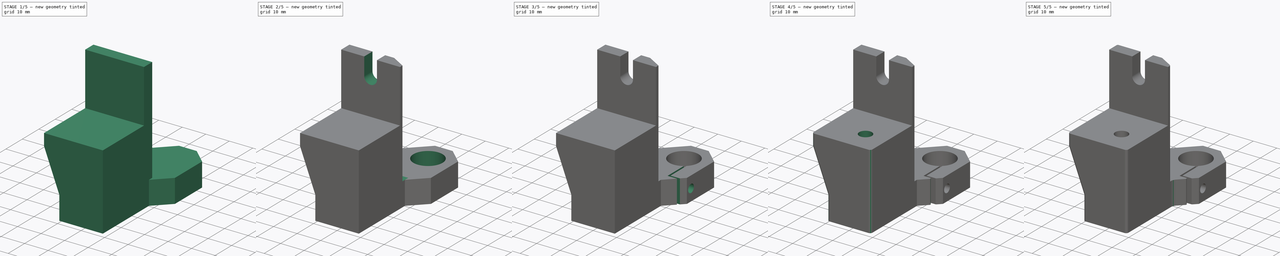
[diagram: build sequence overview — one tinted view per stage of 5, left to right]
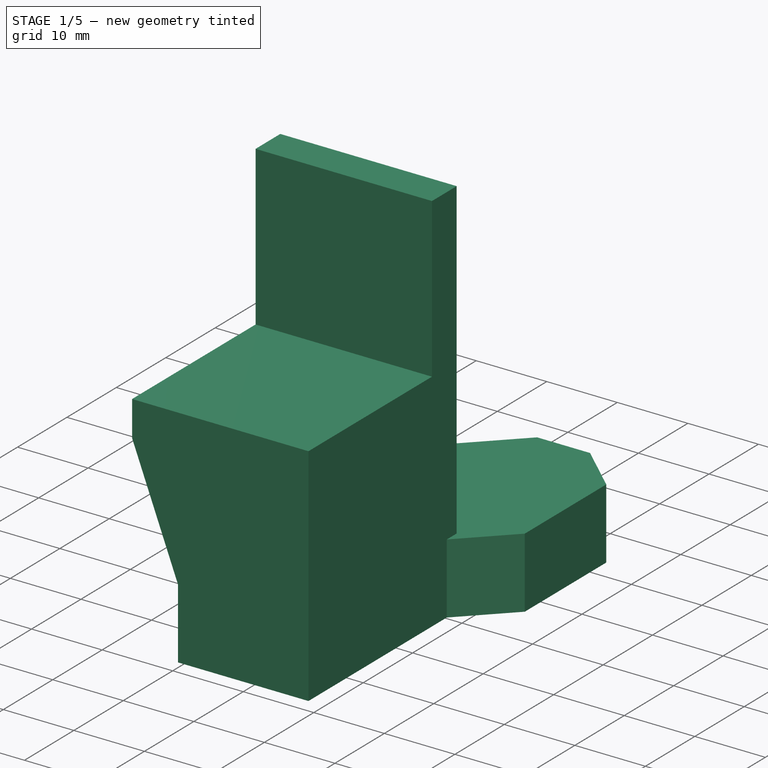
[diagram: stage 1 of 5 — iso view after this stage's code; geometry added in this stage tinted green]
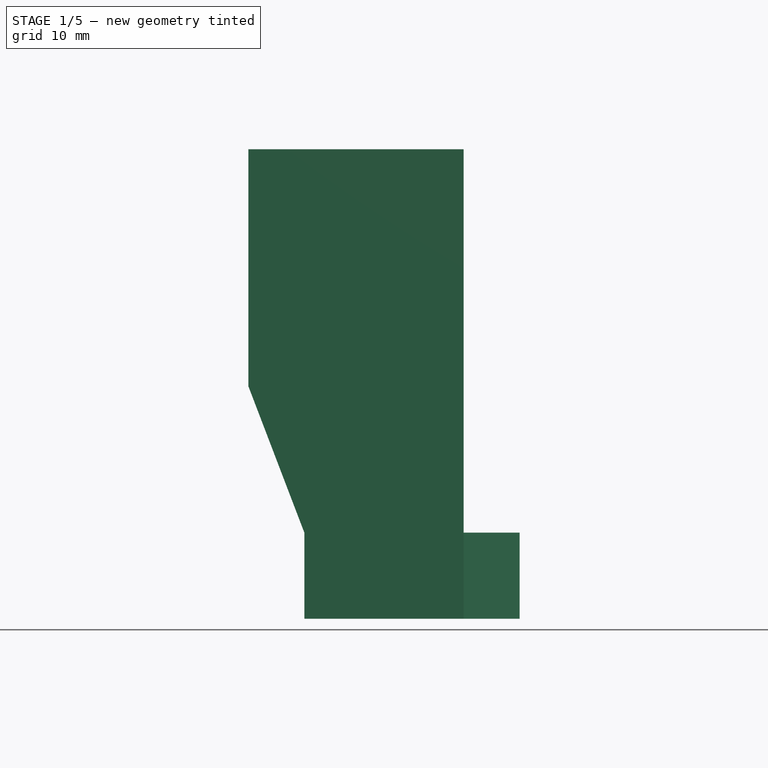
[diagram: stage 1 of 5 — front view after this stage's code; geometry added in this stage tinted green]
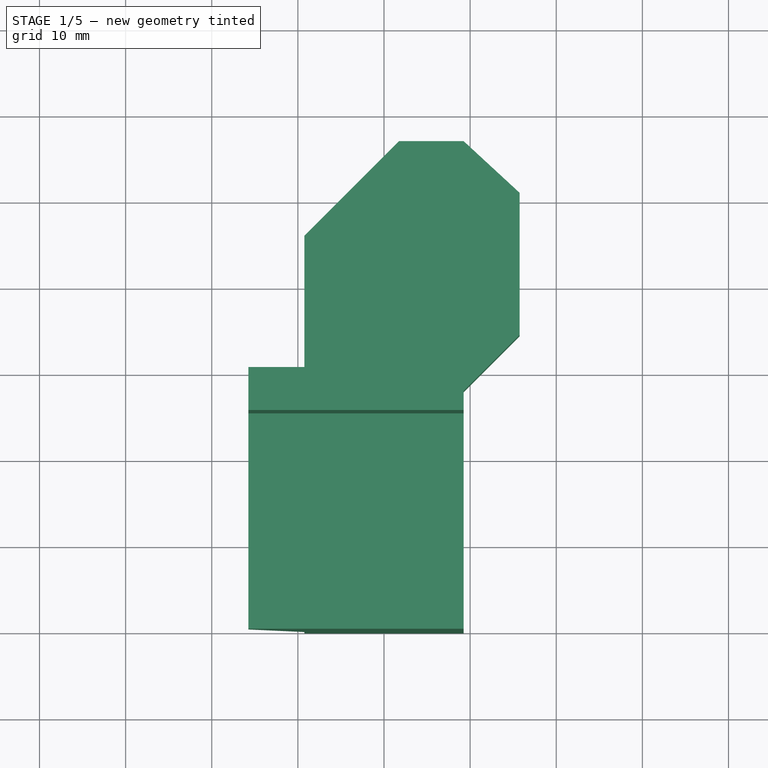
[diagram: stage 1 of 5 — top view after this stage's code; geometry added in this stage tinted green]
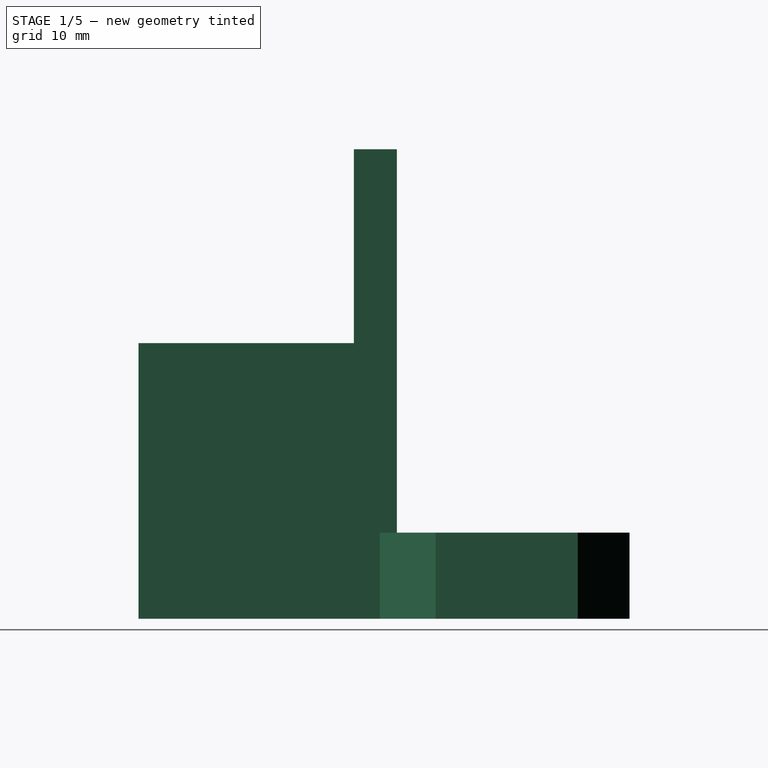
[diagram: stage 1 of 5 — right view after this stage's code; geometry added in this stage tinted green]
FCSTD DOCUMENT  (FreeCAD 0.19R18356 (Git))
Label: z_axis_linear_rail_bracket_double_z_left_1_1
License: All rights reserved
LicenseURL: http://en.wikipedia.org/wiki/All_rights_reserved
objects: Sketcher::SketchObject×12, PartDesign::Pocket×9, PartDesign::Fillet×6, PartDesign::Plane×4, PartDesign::Pad×3, PartDesign::Body×1
note: 47 computed .brp shape members not serialized (recipe doc carries the construction recipe); baked Part::Feature solids carry a one-line shape summary decoded from their .brp

FEATURE [Sketcher::SketchObject] Sketch
  MapMode = 5
  Support = -> [XY_Plane]
  sketch-geometry (8):
    g0: LineSegment StartX=-9.25 StartY=0 StartZ=0 EndX=-9.25 EndY=46 EndZ=0
    g1: LineSegment StartX=-9.25 StartY=46 StartZ=0 EndX=1.75 EndY=57 EndZ=0
    g2: LineSegment StartX=1.75 StartY=57 StartZ=0 EndX=9.25 EndY=57 EndZ=0
    g3: LineSegment StartX=9.25 StartY=57 StartZ=0 EndX=15.75 EndY=51 EndZ=0
    g4: LineSegment StartX=15.75 StartY=51 StartZ=0 EndX=15.75 EndY=34.5 EndZ=0
    g5: LineSegment StartX=15.75 StartY=34.5 StartZ=0 EndX=9.25 EndY=28 EndZ=0
    g6: LineSegment StartX=9.25 StartY=28 StartZ=0 EndX=9.25 EndY=0 EndZ=0
    g7: LineSegment StartX=9.25 StartY=0 StartZ=0 EndX=-9.25 EndY=0 EndZ=0
  constraints (23):
    c: PointOnObject(g0,g-1)
    c: Vertical(g0)
    c: Coincident(g0,g1)
    c: Coincident(g1,g2)
    c: Horizontal(g2)
    c: Coincident(g2,g3)
    c: Coincident(g3,g4)
    c: Vertical(g4)
    c: Coincident(g4,g5)
    c: Coincident(g5,g6)
    c: Vertical(g6)
    c: Coincident(g6,g7)
    c: Coincident(g7,g0)
    c: DistanceX(g7,g7) = 18.5
    c: DistanceX(g2,g2) = 7.5
    c: DistanceX(g5,g4) = 6.5
    c: DistanceX(g0,g1) = 11
    c: DistanceY(g0,g0) = 46
    c: DistanceY(g0,g1) = 57
    c: DistanceY(g3,g2) = 6
    c: DistanceY(g6,g5) = 28
    c: DistanceY(g4,g4) = 16.5
    c: Symmetric(g0,g6,g-2)
FEATURE [PartDesign::Pad] Pad
  Length = 10
  Length2 = 100
  Profile = -> Sketch
  Type = 0
FEATURE [PartDesign::Plane] DatumPlane
  AttachmentOffset = pos=(0,0,10) rot=(0,0,1;0rad)
  Length = 62.8062
  MapMode = 5
  Placement = pos=(0,0,10) rot=(0,0,1;0rad)
  ResizeMode = 0
  Support = -> [XY_Plane]
  Width = 94.8062
FEATURE [Sketcher::SketchObject] Sketch001
  MapMode = 5
  Placement = pos=(0,0,10) rot=(0,0,1;0rad)
  Support = -> [DatumPlane]
  sketch-geometry (4):
    g0: LineSegment StartX=9.25 StartY=0 StartZ=0 EndX=-15.75 EndY=0 EndZ=0
    g1: LineSegment StartX=-15.75 StartY=0 StartZ=0 EndX=-15.75 EndY=30 EndZ=0
    g2: LineSegment StartX=-15.75 StartY=30 StartZ=0 EndX=9.25 EndY=30 EndZ=0
    g3: LineSegment StartX=9.25 StartY=30 StartZ=0 EndX=9.25 EndY=0 EndZ=0
  constraints (12):
    c: Coincident(g0,g1)
    c: Coincident(g1,g2)
    c: Coincident(g2,g3)
    c: Coincident(g3,g0)
    c: Horizontal(g0)
    c: Horizontal(g2)
    c: Vertical(g1)
    c: Vertical(g3)
    c: PointOnObject(g0,g-1)
    c: DistanceX(g-1,g0) = 9.25
    c: DistanceY(g3,g3) = 30
    c: DistanceX(g0,g0) = 25
FEATURE [PartDesign::Pad] Pad001
  BaseFeature = -> Pad
  Length = 22
  Length2 = 100
  Profile = -> Sketch001
  Type = 0
FEATURE [PartDesign::Plane] DatumPlane001
  AttachmentOffset = pos=(0,0,32) rot=(0,0,1;0rad)
  Length = 62.8062
  MapMode = 5
  Placement = pos=(0,0,32) rot=(0,0,1;0rad)
  ResizeMode = 0
  Support = -> [XY_Plane]
  Width = 94.8062
FEATURE [Sketcher::SketchObject] Sketch002
  MapMode = 5
  Placement = pos=(0,0,32) rot=(0,0,1;0rad)
  Support = -> [DatumPlane001]
  sketch-geometry (4):
    g0: LineSegment StartX=-15.75 StartY=30 StartZ=0 EndX=9.25 EndY=30 EndZ=0
    g1: LineSegment StartX=9.25 StartY=30 StartZ=0 EndX=9.25 EndY=25 EndZ=0
    g2: LineSegment StartX=9.25 StartY=25 StartZ=0 EndX=-15.75 EndY=25 EndZ=0
    g3: LineSegment StartX=-15.75 StartY=25 StartZ=0 EndX=-15.75 EndY=30 EndZ=0
  constraints (12):
    c: Coincident(g0,g1)
    c: Coincident(g1,g2)
    c: Coincident(g2,g3)
    c: Coincident(g3,g0)
    c: Horizontal(g0)
    c: Horizontal(g2)
    c: Vertical(g1)
    c: Vertical(g3)
    c: DistanceX(g2,g2) = 25
    c: DistanceX(g-1,g1) = 9.25
    c: DistanceY(g-1,g0) = 30
    c: DistanceY(g3,g3) = 5
FEATURE [PartDesign::Pad] Pad002
  BaseFeature = -> Pad001
  Length = 22.5
  Length2 = 100
  Profile = -> Sketch002
  Type = 0
FEATURE [Sketcher::SketchObject] Sketch003
  MapMode = 5
  Placement = pos=(0,0,0) rot=(1,0,0;1.5708rad)
  Support = -> [XZ_Plane]
  sketch-geometry (3):
    g0: LineSegment StartX=-15.75 StartY=27 StartZ=0 EndX=-9.25 EndY=10 EndZ=0
    g1: LineSegment StartX=-9.25 StartY=10 StartZ=0 EndX=-15.75 EndY=10 EndZ=0
    g2: LineSegment StartX=-15.75 StartY=10 StartZ=0 EndX=-15.75 EndY=27 EndZ=0
  constraints (9):
    c: Coincident(g0,g1)
    c: Horizontal(g1)
    c: Coincident(g1,g2)
    c: Coincident(g2,g0)
    c: Vertical(g2)
    c: DistanceY(g2,g2) = 17
    c: DistanceY(g-1,g1) = 10
    c: DistanceX(g1,g-1) = 15.75
    c: DistanceX(g1,g1) = 6.5
FEATURE [PartDesign::Pocket] Pocket
  BaseFeature = -> Pad002
  Length = 5
  Length2 = 100
  Profile = -> Sketch003
  Type = 1
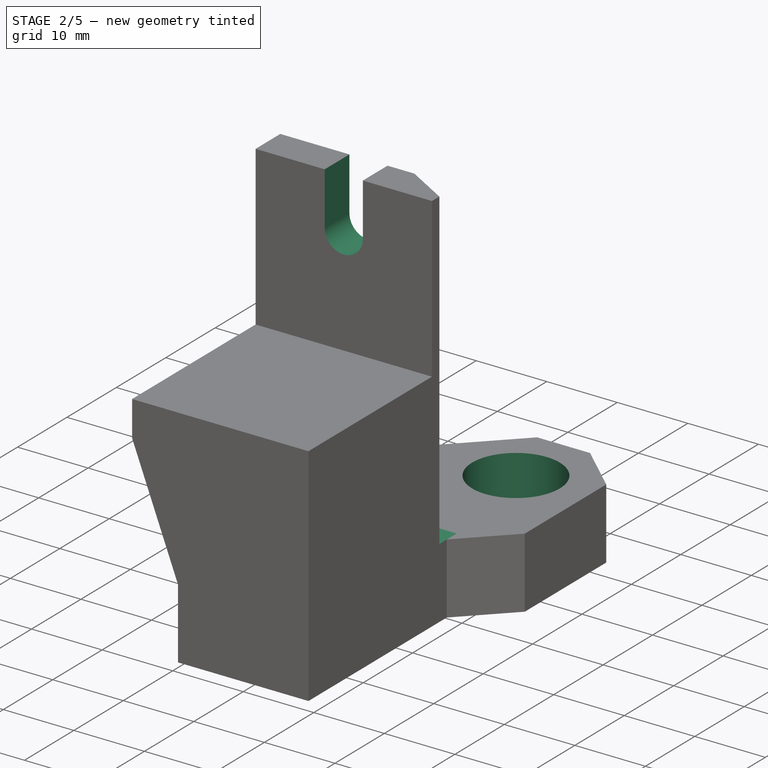
[diagram: stage 2 of 5 — iso view after this stage's code; geometry added in this stage tinted green]
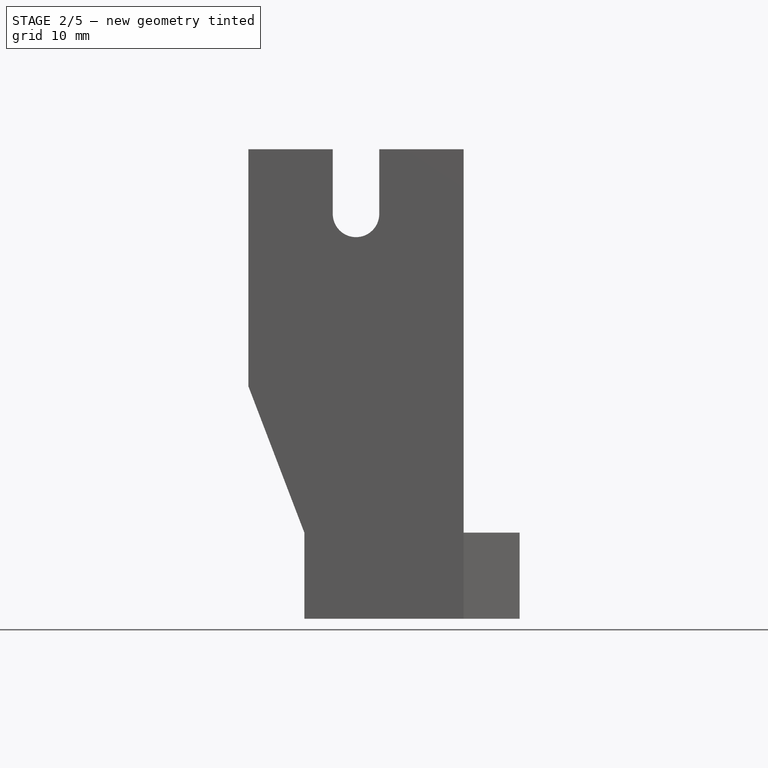
[diagram: stage 2 of 5 — front view after this stage's code; geometry added in this stage tinted green]
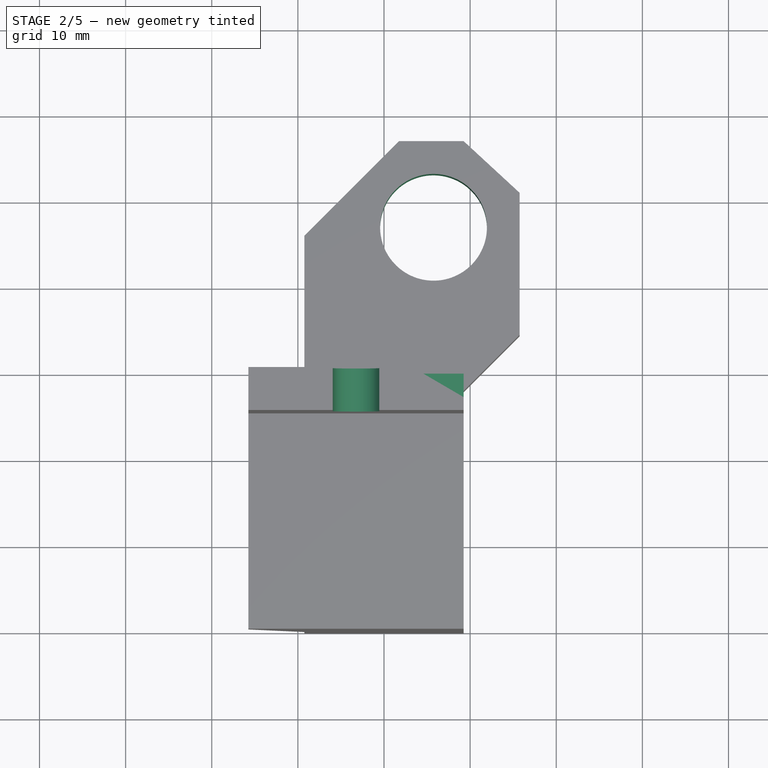
[diagram: stage 2 of 5 — top view after this stage's code; geometry added in this stage tinted green]
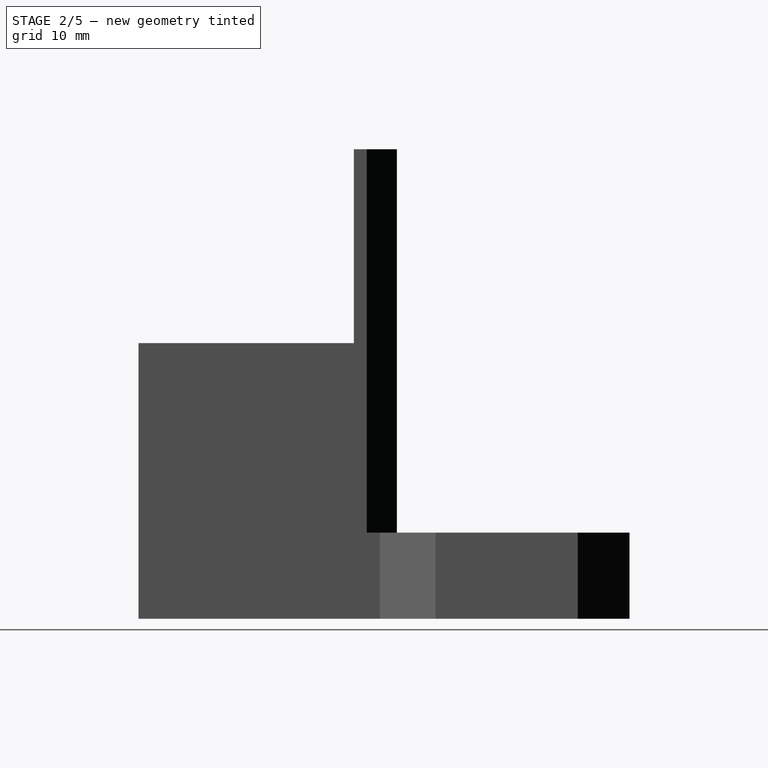
[diagram: stage 2 of 5 — right view after this stage's code; geometry added in this stage tinted green]
FEATURE [Sketcher::SketchObject] Sketch004
  MapMode = 5
  Placement = pos=(0,0,10) rot=(0,0,1;0rad)
  Support = -> [DatumPlane]
  sketch-geometry (3):
    g0: LineSegment StartX=3.25 StartY=30 StartZ=0 EndX=9.25 EndY=30 EndZ=0
    g1: LineSegment StartX=9.25 StartY=30 StartZ=0 EndX=9.25 EndY=26.5 EndZ=0
    g2: LineSegment StartX=9.25 StartY=26.5 StartZ=0 EndX=3.25 EndY=30 EndZ=0
  constraints (9):
    c: Horizontal(g0)
    c: Coincident(g0,g1)
    c: Vertical(g1)
    c: Coincident(g1,g2)
    c: Coincident(g2,g0)
    c: DistanceX(g0,g0) = 6
    c: DistanceY(g1,g1) = 3.5
    c: DistanceX(g-1,g0) = 9.25
    c: DistanceY(g-1,g0) = 30
FEATURE [PartDesign::Pocket] Pocket001
  BaseFeature = -> Pocket
  Length = 5
  Length2 = 100
  Profile = -> Sketch004
  Reversed = true
  Type = 1
FEATURE [PartDesign::Plane] DatumPlane002
  AttachmentOffset = pos=(0,0,-25) rot=(0,0,1;0rad)
  Length = 62.6095
  MapMode = 5
  Placement = pos=(0,25,5.6e-15) rot=(1,0,0;1.5708rad)
  ResizeMode = 0
  Support = -> [XZ_Plane]
  Width = 92.1095
FEATURE [Sketcher::SketchObject] Sketch005
  MapMode = 5
  Placement = pos=(0,25,5.6e-15) rot=(1,0,0;1.5708rad)
  Support = -> [DatumPlane002]
  sketch-geometry (4):
    g0: LineSegment StartX=-5.95 StartY=47 StartZ=0 EndX=-5.95 EndY=54.5 EndZ=0
    g1: LineSegment StartX=-5.95 StartY=54.5 StartZ=0 EndX=-0.55 EndY=54.5 EndZ=0
    g2: LineSegment StartX=-0.55 StartY=54.5 StartZ=0 EndX=-0.55 EndY=47 EndZ=0
    g3: ArcOfCircle CenterX=-3.25 CenterY=47 CenterZ=0 NormalX=0 NormalY=0 NormalZ=1 AngleXU=0 Radius=2.7 StartAngle=3.14159 EndAngle=6.28319
  constraints (12):
    c: Vertical(g0)
    c: Coincident(g0,g1)
    c: Horizontal(g1)
    c: Coincident(g1,g2)
    c: Vertical(g2)
    c: Coincident(g3,g2)
    c: Equal(g0,g2)
    c: Tangent(g3,g0) = 1.5708
    c: DistanceX(g1,g1) = 5.4
    c: DistanceY(g3,g0) = 7.5
    c: DistanceY(g-1,g1) = 54.5
    c: DistanceX(g1,g-1) = 0.55
FEATURE [PartDesign::Pocket] Pocket002
  BaseFeature = -> Pocket001
  Length = 5
  Length2 = 100
  Profile = -> Sketch005
  Type = 1
FEATURE [Sketcher::SketchObject] Sketch006
  MapMode = 5
  Placement = pos=(0,0,10) rot=(0,0,1;0rad)
  Support = -> [DatumPlane]
  sketch-geometry (1):
    g0: Circle CenterX=5.75 CenterY=47 CenterZ=0 NormalX=0 NormalY=0 NormalZ=1 AngleXU=0 Radius=6.2
  constraints (3):
    c: Radius(g0) = 6.2
    c: DistanceY(g-1,g0) = 47
    c: DistanceX(g-1,g0) = 5.75
FEATURE [PartDesign::Pocket] Pocket003
  BaseFeature = -> Pocket002
  Length = 5
  Length2 = 100
  Profile = -> Sketch006
  Type = 1
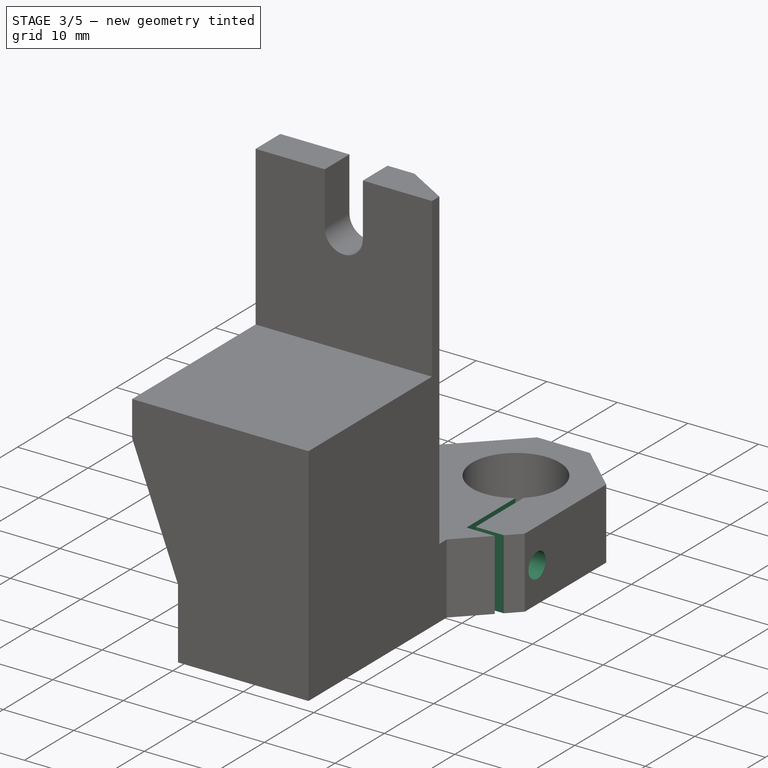
[diagram: stage 3 of 5 — iso view after this stage's code; geometry added in this stage tinted green]
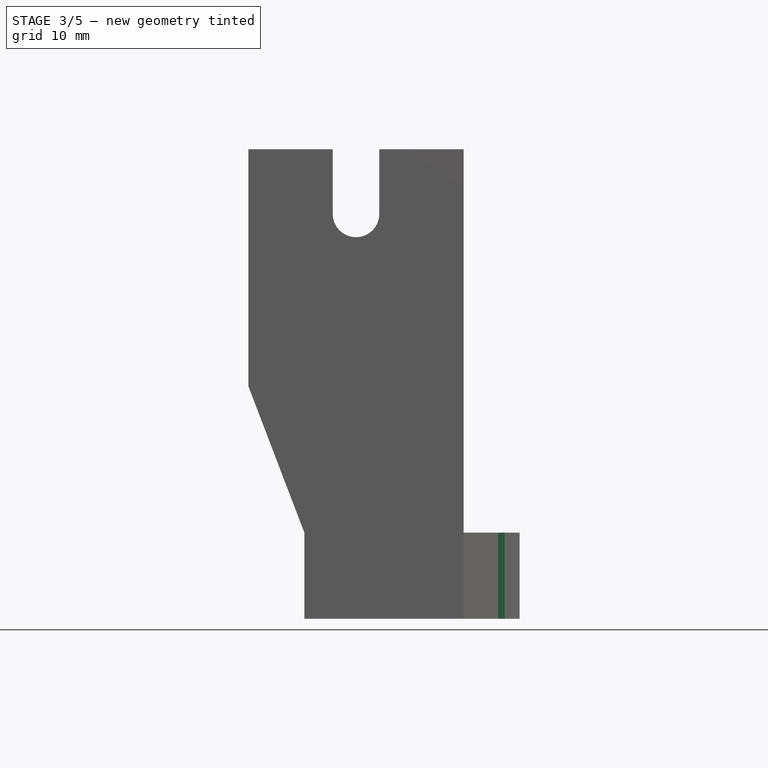
[diagram: stage 3 of 5 — front view after this stage's code; geometry added in this stage tinted green]
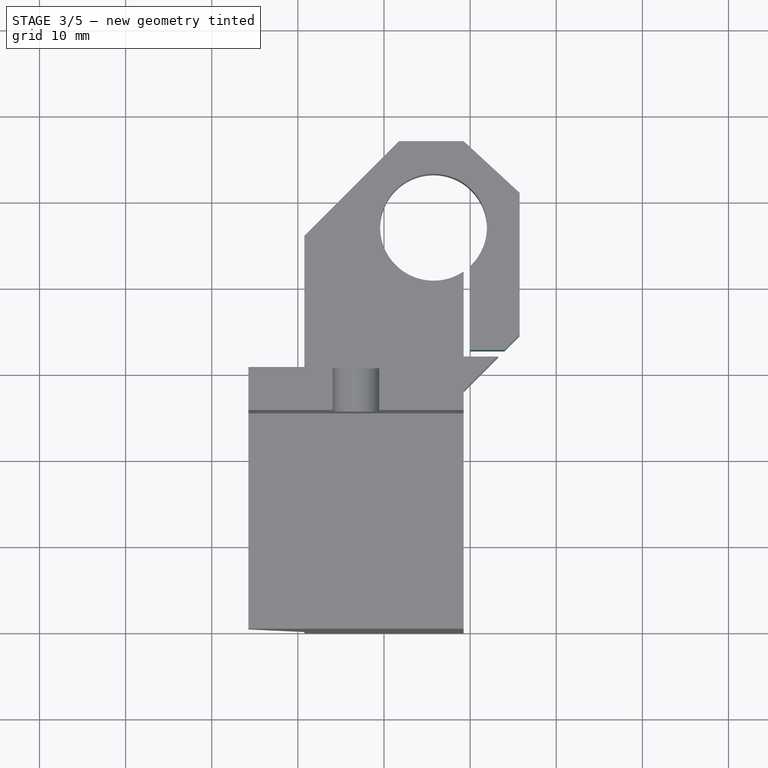
[diagram: stage 3 of 5 — top view after this stage's code; geometry added in this stage tinted green]
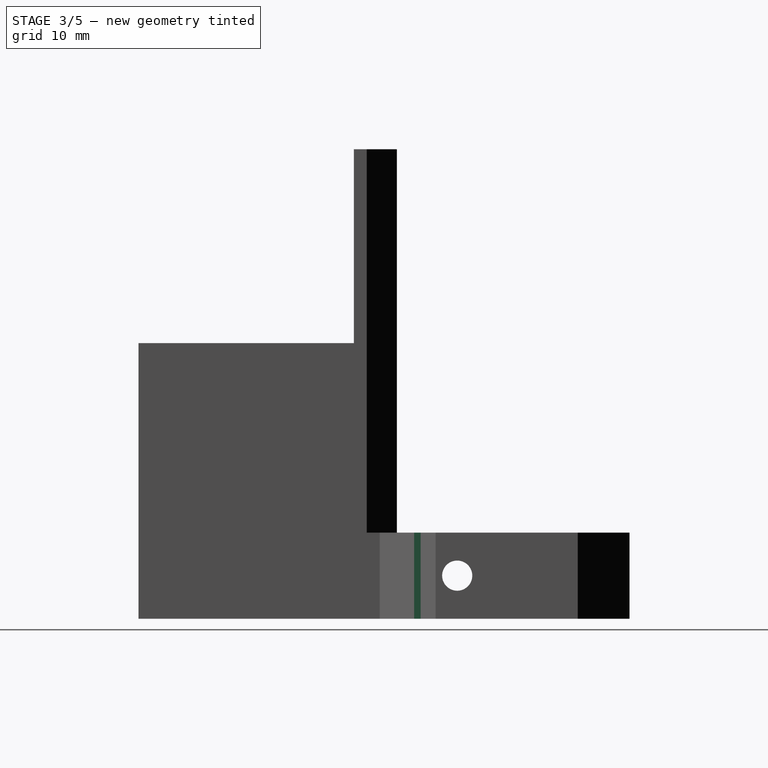
[diagram: stage 3 of 5 — right view after this stage's code; geometry added in this stage tinted green]
FEATURE [Sketcher::SketchObject] Sketch007
  MapMode = 5
  Placement = pos=(0,0,10) rot=(0,0,1;0rad)
  Support = -> [DatumPlane]
  sketch-geometry (6):
    g0: LineSegment StartX=9.25 StartY=43.25 StartZ=0 EndX=10 EndY=43.25 EndZ=0
    g1: LineSegment StartX=10 StartY=43.25 StartZ=0 EndX=10 EndY=32.75 EndZ=0
    g2: LineSegment StartX=10 StartY=32.75 StartZ=0 EndX=15 EndY=32.75 EndZ=0
    g3: LineSegment StartX=15 StartY=32.75 StartZ=0 EndX=15 EndY=32 EndZ=0
    g4: LineSegment StartX=15 StartY=32 StartZ=0 EndX=9.25 EndY=32 EndZ=0
    g5: LineSegment StartX=9.25 StartY=32 StartZ=0 EndX=9.25 EndY=43.25 EndZ=0
  constraints (18):
    c: Horizontal(g0)
    c: Coincident(g0,g1)
    c: Vertical(g1)
    c: Coincident(g1,g2)
    c: Horizontal(g2)
    c: Coincident(g2,g3)
    c: Vertical(g3)
    c: Coincident(g3,g4)
    c: Horizontal(g4)
    c: Coincident(g4,g5)
    c: Coincident(g5,g0)
    c: Vertical(g5)
    c: DistanceX(g0,g0) = 0.75
    c: DistanceY(g3,g3) = 0.75
    c: DistanceY(g-1,g3) = 32
    c: DistanceX(g-1,g4) = 9.25
    c: DistanceY(g1,g1) = 10.5
    c: DistanceX(g2,g2) = 5
FEATURE [PartDesign::Pocket] Pocket004
  BaseFeature = -> Pocket003
  Length = 5
  Length2 = 100
  Profile = -> Sketch007
  Type = 1
FEATURE [PartDesign::Plane] DatumPlane003
  AttachmentOffset = pos=(0,0,-9.25) rot=(0,0,1;0rad)
  Length = 98.1481
  MapMode = 5
  Placement = pos=(-9.25,2.1e-15,-2.1e-15) rot=(0.57735,0.57735,0.57735;2.0944rad)
  ResizeMode = 0
  Support = -> [YZ_Plane]
  Width = 95.6481
FEATURE [Sketcher::SketchObject] Sketch008
  MapMode = 5
  Placement = pos=(-9.25,2.1e-15,-2.1e-15) rot=(0.57735,0.57735,0.57735;2.0944rad)
  Support = -> [DatumPlane003]
  sketch-geometry (1):
    g0: Circle CenterX=37 CenterY=5 CenterZ=0 NormalX=0 NormalY=0 NormalZ=1 AngleXU=0 Radius=1.75
  constraints (3):
    c: Radius(g0) = 1.75
    c: DistanceY(g-1,g0) = 5
    c: DistanceX(g-1,g0) = 37
FEATURE [PartDesign::Pocket] Pocket005
  BaseFeature = -> Pocket004
  Length = 5
  Length2 = 100
  Profile = -> Sketch008
  Reversed = true
  Type = 1
FEATURE [Sketcher::SketchObject] Sketch009
  MapMode = 5
  Placement = pos=(-9.25,2.1e-15,-2.1e-15) rot=(0.57735,0.57735,0.57735;2.0944rad)
  Support = -> [DatumPlane003]
  sketch-geometry (1):
    g0: Circle CenterX=37 CenterY=5 CenterZ=0 NormalX=0 NormalY=0 NormalZ=1 AngleXU=0 Radius=2.35
  constraints (3):
    c: Radius(g0) = 2.35
    c: DistanceY(g-1,g0) = 5
    c: DistanceX(g-1,g0) = 37
FEATURE [PartDesign::Pocket] Pocket006
  BaseFeature = -> Pocket005
  Length = 4.5
  Length2 = 100
  Profile = -> Sketch009
  Reversed = true
  Type = 0
FEATURE [Sketcher::SketchObject] Sketch010
  MapMode = 5
  Support = -> [XY_Plane]
  sketch-geometry (1):
    g0: Circle CenterX=0 CenterY=10 CenterZ=0 NormalX=0 NormalY=0 NormalZ=1 AngleXU=0 Radius=5.25
  constraints (3):
    c: PointOnObject(g0,g-2)
    c: Radius(g0) = 5.25
    c: DistanceY(g-1,g0) = 10
FEATURE [PartDesign::Pocket] Pocket007
  BaseFeature = -> Pocket006
  Length = 27
  Length2 = 100
  Profile = -> Sketch010
  Reversed = true
  Type = 0
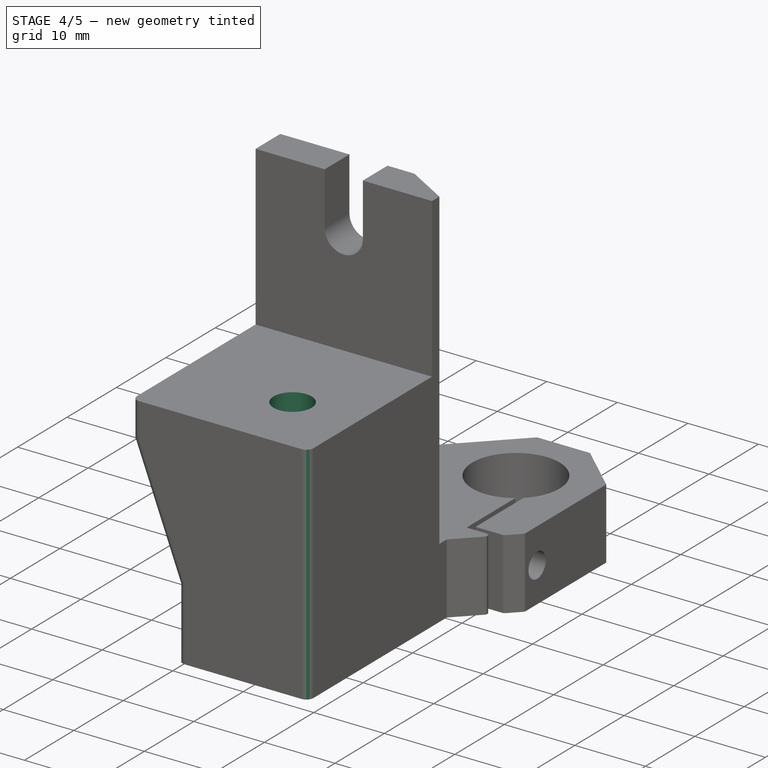
[diagram: stage 4 of 5 — iso view after this stage's code; geometry added in this stage tinted green]
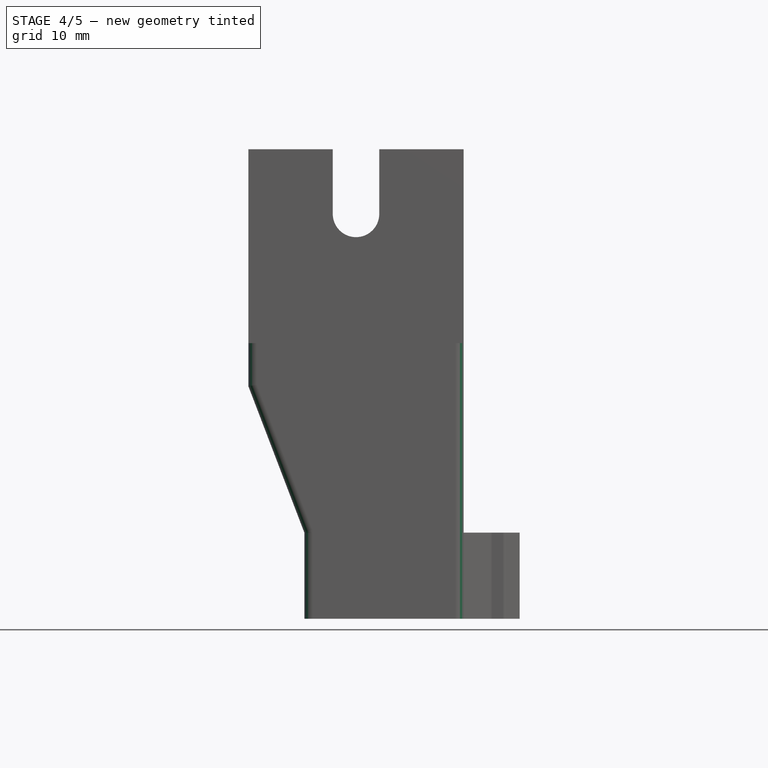
[diagram: stage 4 of 5 — front view after this stage's code; geometry added in this stage tinted green]
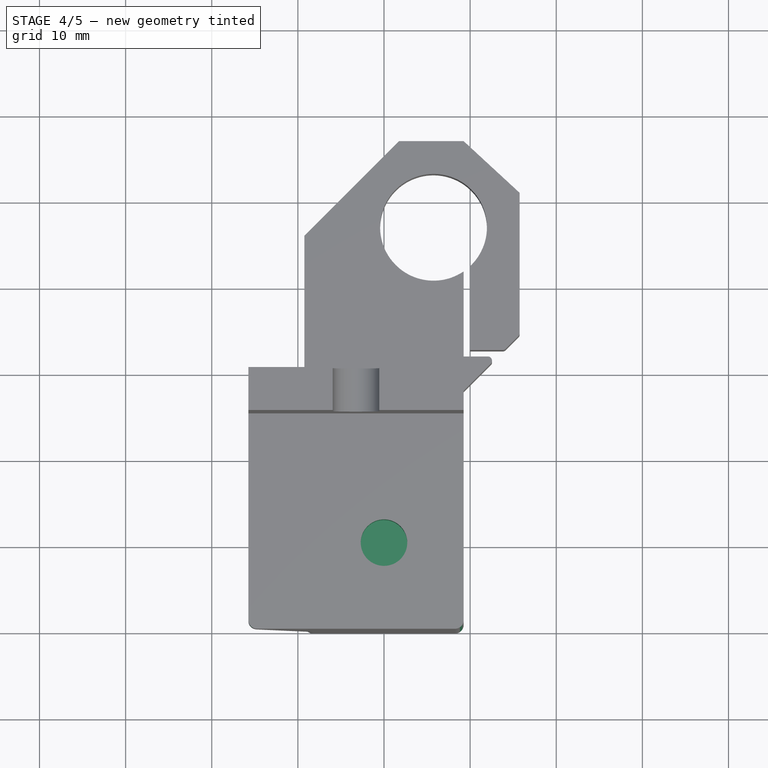
[diagram: stage 4 of 5 — top view after this stage's code; geometry added in this stage tinted green]
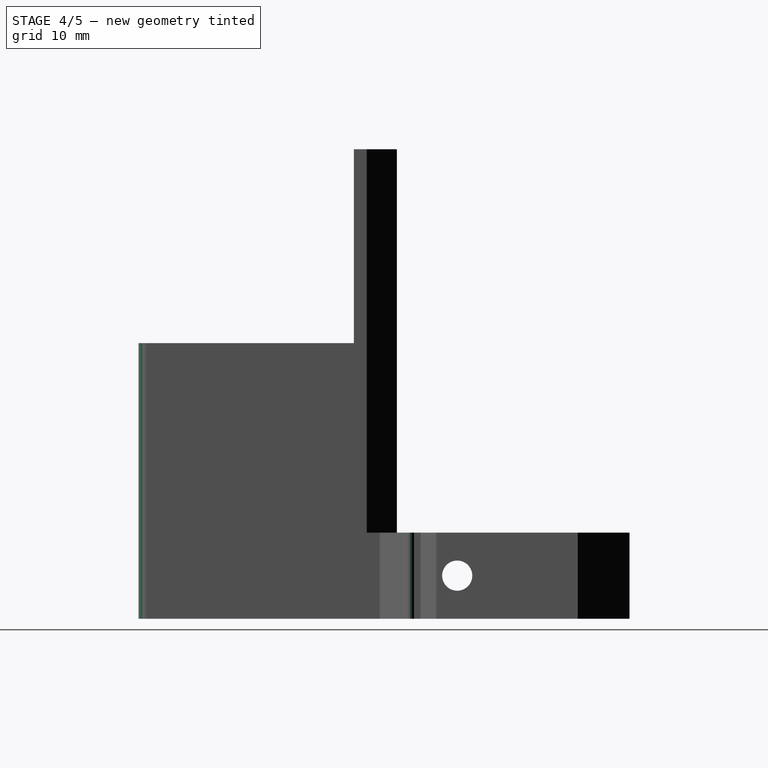
[diagram: stage 4 of 5 — right view after this stage's code; geometry added in this stage tinted green]
FEATURE [Sketcher::SketchObject] Sketch011
  MapMode = 5
  Placement = pos=(0,0,32) rot=(0,0,1;0rad)
  Support = -> [DatumPlane001]
  sketch-geometry (1):
    g0: Circle CenterX=0 CenterY=10 CenterZ=0 NormalX=0 NormalY=0 NormalZ=1 AngleXU=0 Radius=2.7
  constraints (3):
    c: PointOnObject(g0,g-2)
    c: Radius(g0) = 2.7
    c: DistanceY(g-1,g0) = 10
FEATURE [PartDesign::Pocket] Pocket008
  BaseFeature = -> Pocket007
  Length = 4.6
  Length2 = 100
  Profile = -> Sketch011
  Type = 0
FEATURE [PartDesign::Fillet] Fillet
  Base = -> Pocket008 [Edge50,Edge48,Edge24,Edge1]
  BaseFeature = -> Pocket008
  Radius = 1
FEATURE [PartDesign::Fillet] Fillet001
  Base = -> Fillet [Edge55,Edge65,Edge62]
  BaseFeature = -> Fillet
  Radius = 0.5
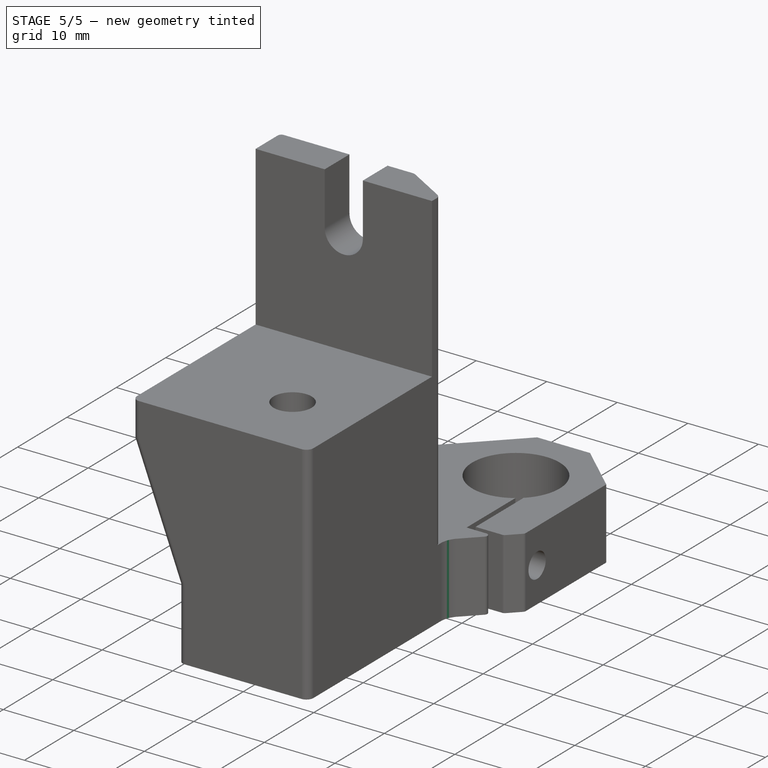
[diagram: stage 5 of 5 — iso view after this stage's code; geometry added in this stage tinted green]
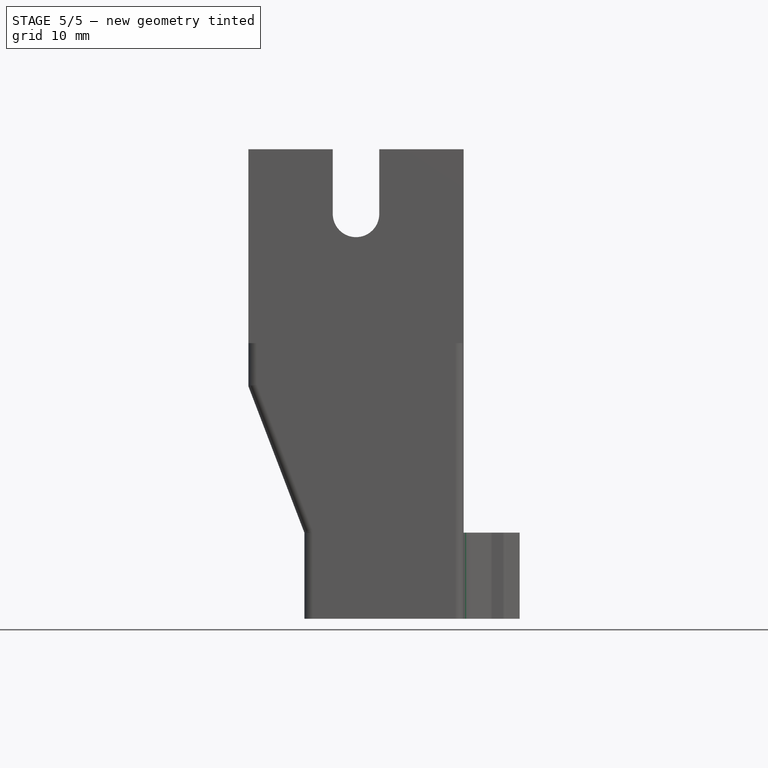
[diagram: stage 5 of 5 — front view after this stage's code; geometry added in this stage tinted green]
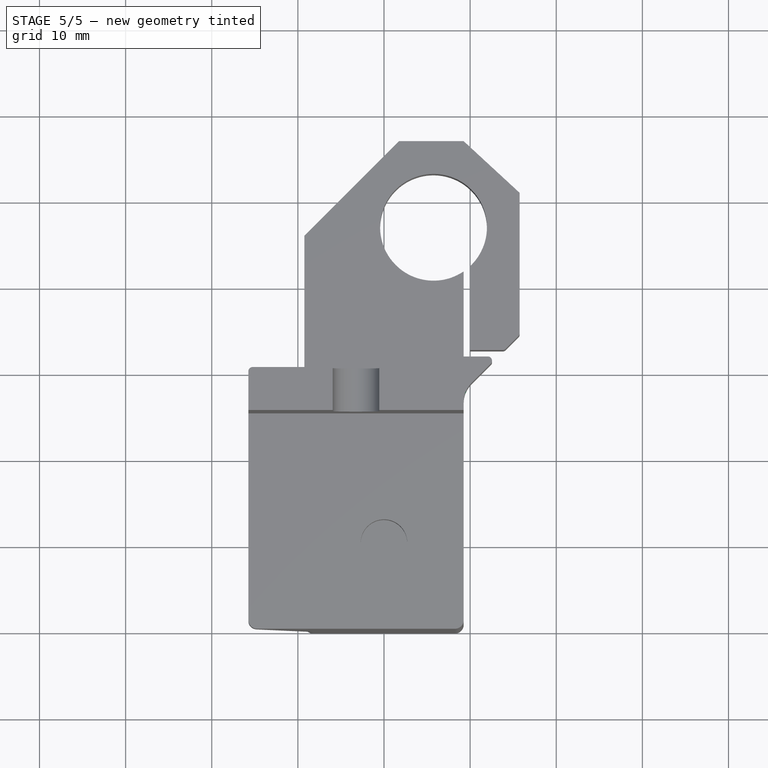
[diagram: stage 5 of 5 — top view after this stage's code; geometry added in this stage tinted green]
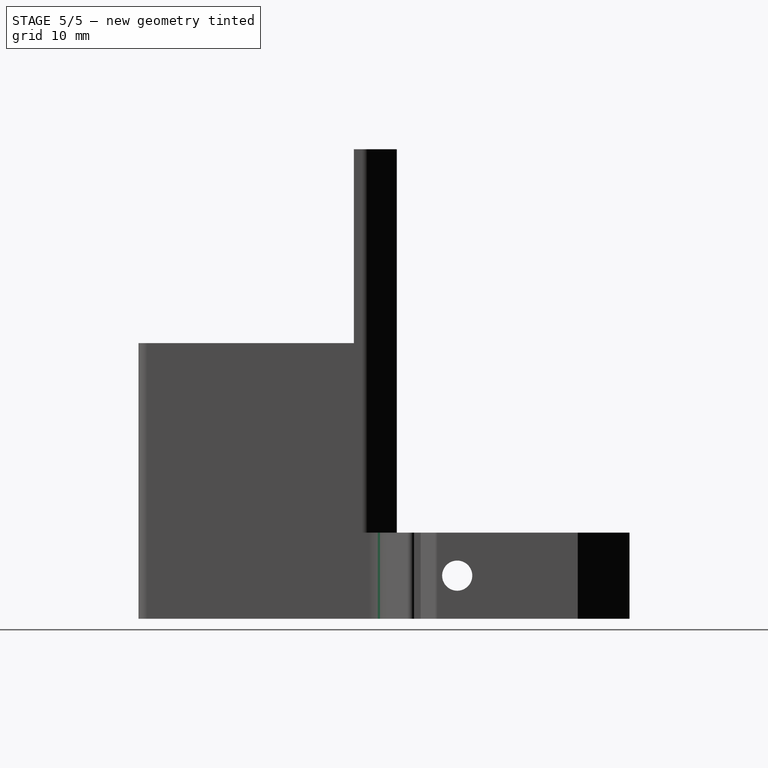
[diagram: stage 5 of 5 — right view after this stage's code; geometry added in this stage tinted green]
FEATURE [PartDesign::Fillet] Fillet002
  Base = -> Fillet001 [Edge94,Edge75,Edge89]
  BaseFeature = -> Fillet001
  Radius = 1
FEATURE [PartDesign::Fillet] Fillet003
  Base = -> Fillet002 [Edge109]
  BaseFeature = -> Fillet002
  Radius = 1
FEATURE [PartDesign::Fillet] Fillet004
  Base = -> Fillet002 [Edge133,Edge107,Edge109]
  BaseFeature = -> Fillet002
  Radius = 0.5
FEATURE [PartDesign::Fillet] Fillet005
  Base = -> Fillet004 [Edge13,Edge56,Edge100,Edge101,Edge116]
  BaseFeature = -> Fillet004
  Radius = 3
FEATURE [PartDesign::Body] Body
  Group = -> [Sketch,Pad,DatumPlane,Sketch001,Pad001,DatumPlane001,Sketch002,Pad002,Sketch003,Pocket,Sketch004,Pocket001,DatumPlane002,Sketch005,Pocket002,Sketch006,Pocket003,Sketch007,Pocket004,DatumPlane003,Sketch008,Pocket005,Sketch009,Pocket006,Sketch010,Pocket007,Sketch011,Pocket008,Fillet,Fillet001,Fillet002,Fillet003,Fillet004,Fillet005]
  Origin = -> Origin
  Tip = -> Fillet005
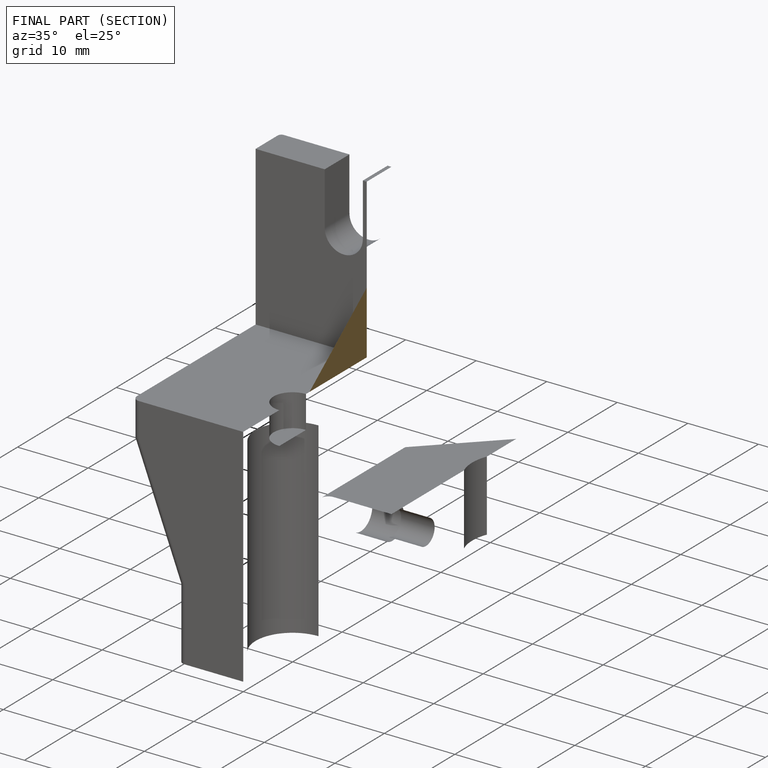
[diagram: finished part — half-section view (interior)]
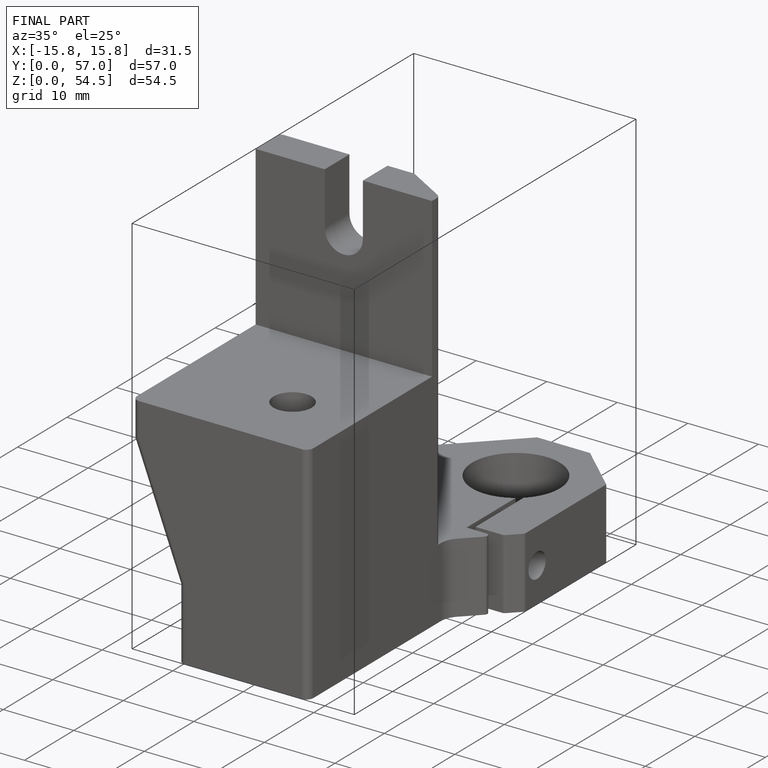
[diagram: finished part — iso view with bounding-box wireframe]
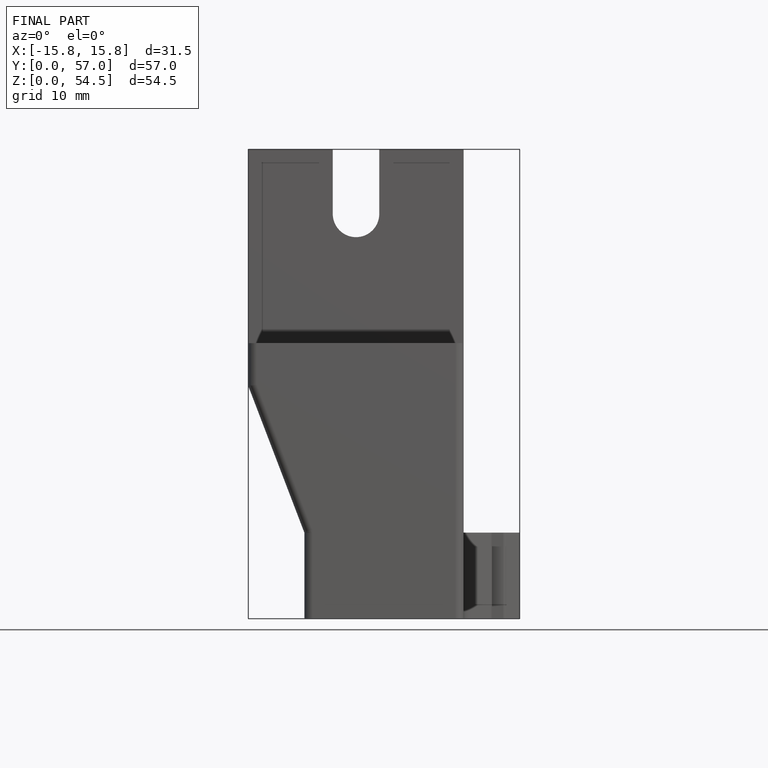
[diagram: finished part — front view with bounding-box wireframe]
